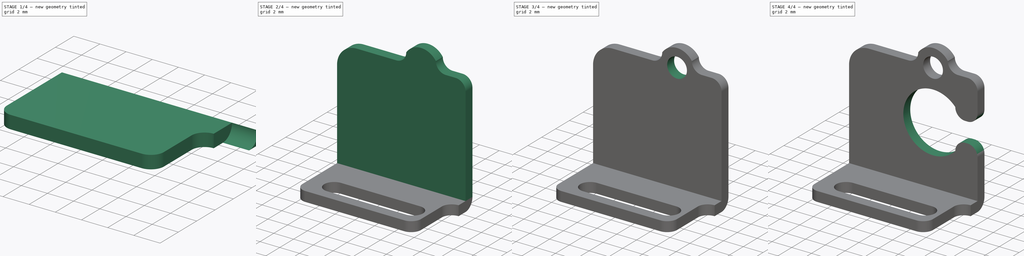
[diagram: build sequence overview — one tinted view per stage of 4, left to right]
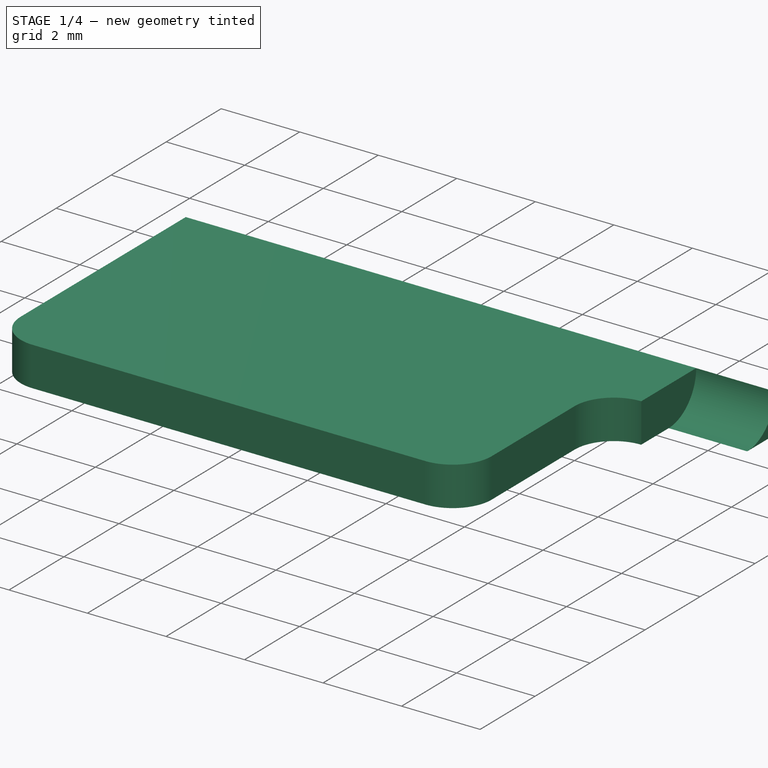
[diagram: stage 1 of 4 — iso view after this stage's code; geometry added in this stage tinted green]
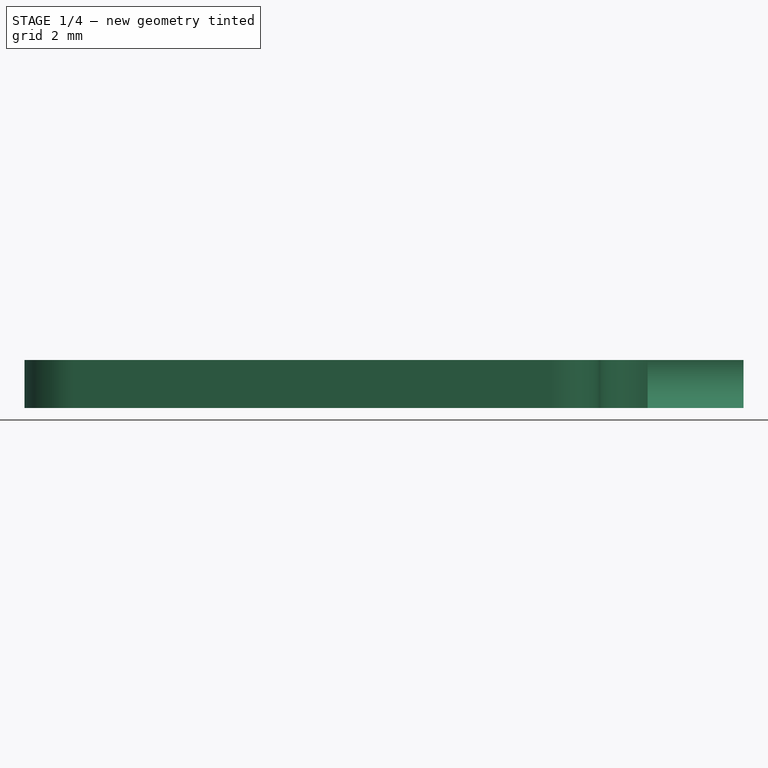
[diagram: stage 1 of 4 — front view after this stage's code; geometry added in this stage tinted green]
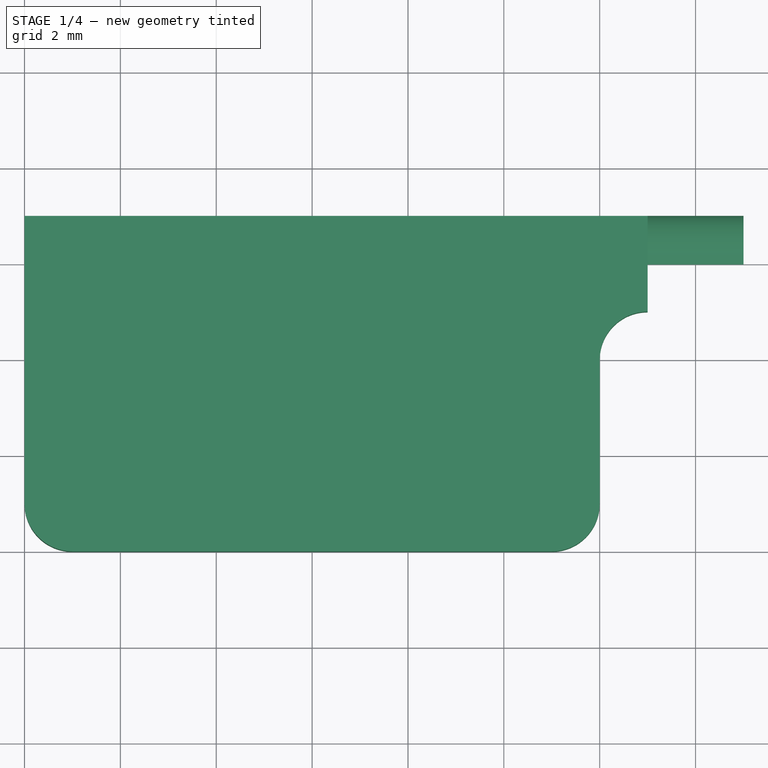
[diagram: stage 1 of 4 — top view after this stage's code; geometry added in this stage tinted green]
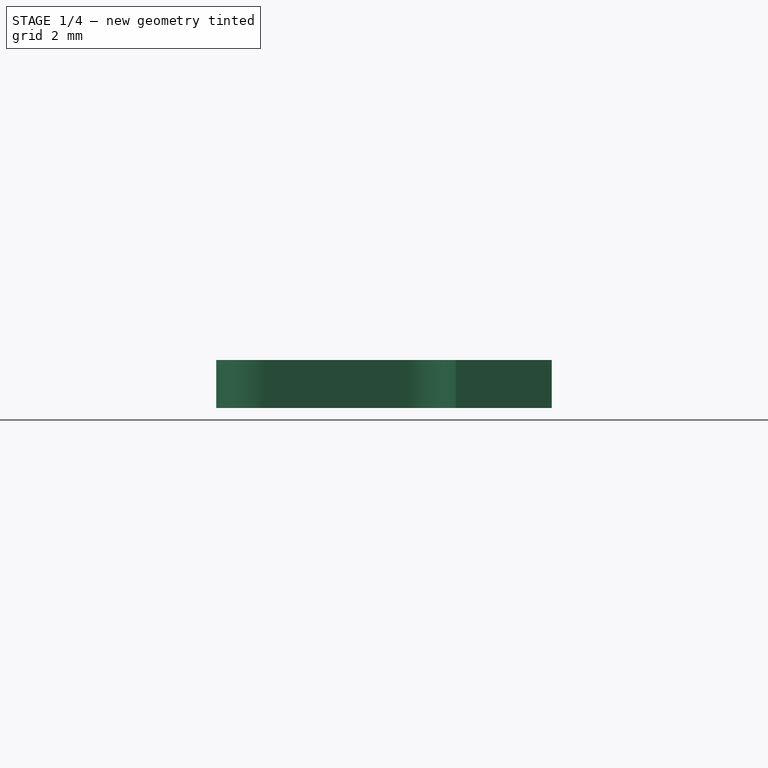
[diagram: stage 1 of 4 — right view after this stage's code; geometry added in this stage tinted green]
FCSTD DOCUMENT  (FreeCAD 0.14R3702 (Git))
Label: scaleauto-f
License: CC-BY 3.0
LicenseURL: http://creativecommons.org/licenses/by/3.0/
objects: Sketcher::SketchObject×6, Part::Extrusion×6, Part::Cut×4, Part::Compound×1
note: 17 computed .brp shape members not serialized (recipe doc carries the construction recipe); baked Part::Feature solids carry a one-line shape summary decoded from their .brp

FEATURE [Sketcher::SketchObject] Sketch
  sketch-geometry (8):
    g0: ArcOfCircle CenterX=1 CenterY=1 CenterZ=0 NormalX=0 NormalY=0 NormalZ=1 Radius=1 StartAngle=3.14159 EndAngle=4.71239
    g1: LineSegment StartX=1 StartY=0 StartZ=0 EndX=11 EndY=0 EndZ=0
    g2: ArcOfCircle CenterX=11 CenterY=1 CenterZ=0 NormalX=0 NormalY=0 NormalZ=1 Radius=1 StartAngle=4.71239 EndAngle=6.28319
    g3: LineSegment StartX=0 StartY=1 StartZ=0 EndX=0 EndY=7 EndZ=0
    g4: LineSegment StartX=0 StartY=7 StartZ=0 EndX=13 EndY=7 EndZ=0
    g5: LineSegment StartX=13 StartY=7 StartZ=0 EndX=13 EndY=5 EndZ=0
    g6: ArcOfCircle CenterX=13 CenterY=4 CenterZ=0 NormalX=0 NormalY=0 NormalZ=1 Radius=1 StartAngle=1.5708 EndAngle=3.14159
    g7: LineSegment StartX=12 StartY=4 StartZ=0 EndX=12 EndY=1 EndZ=0
  constraints (14):
    c: PointOnObject(g0,g-2)
    c: Coincident(g1,g0)
    c: Horizontal(g1)
    c: Coincident(g3,g0)
    c: Vertical(g3)
    c: Coincident(g4,g3)
    c: Horizontal(g4)
    c: Coincident(g5,g4)
    c: Vertical(g5)
    c: Coincident(g7,g6)
    c: Vertical(g7)
    c: Coincident(g1,g2)
    c: Coincident(g2,g7)
    c: Coincident(g5,g6)
FEATURE [Sketcher::SketchObject] Sketch001
  sketch-geometry (4):
    g0: ArcOfCircle CenterX=10.5 CenterY=2 CenterZ=0 NormalX=0 NormalY=0 NormalZ=1 Radius=1 StartAngle=4.71239 EndAngle=7.85398
    g1: LineSegment StartX=10.5 StartY=3 StartZ=0 EndX=2.5 EndY=3 EndZ=0
    g2: ArcOfCircle CenterX=2.5 CenterY=2 CenterZ=0 NormalX=0 NormalY=0 NormalZ=1 Radius=1 StartAngle=1.5708 EndAngle=4.71239
    g3: LineSegment StartX=2.5 StartY=1 StartZ=0 EndX=10.5 EndY=1 EndZ=0
  constraints (6):
    c: Coincident(g1,g0)
    c: Horizontal(g1)
    c: Coincident(g3,g2)
    c: Coincident(g3,g0)
    c: Horizontal(g3)
    c: Coincident(g1,g2)
FEATURE [Part::Extrusion] Extrude
  Base = -> Sketch
  Dir = (0,0,1)
  Solid = true
FEATURE [Part::Extrusion] Extrude001
  Base = -> Sketch001
  Dir = (0,0,1)
  Solid = true
FEATURE [Sketcher::SketchObject] Sketch005
  Placement = pos=(0,0,0) rot=(0.57735,0.57735,0.57735;2.0944rad)
  sketch-geometry (3):
    g0: ArcOfCircle CenterX=6 CenterY=1 CenterZ=0 NormalX=0 NormalY=0 NormalZ=1 Radius=1 StartAngle=4.71239 EndAngle=6.28319
    g1: LineSegment StartX=7 StartY=1 StartZ=0 EndX=7 EndY=0 EndZ=0
    g2: LineSegment StartX=6 StartY=0 StartZ=0 EndX=7 EndY=0 EndZ=0
  constraints (6):
    c: Coincident(g1,g0)
    c: PointOnObject(g1,g-1)
    c: Vertical(g1)
    c: Coincident(g2,g0)
    c: Coincident(g2,g1)
    c: Horizontal(g2)
FEATURE [Part::Extrusion] Extrude006
  Base = -> Sketch005
  Dir = (15,0,0)
  Solid = true
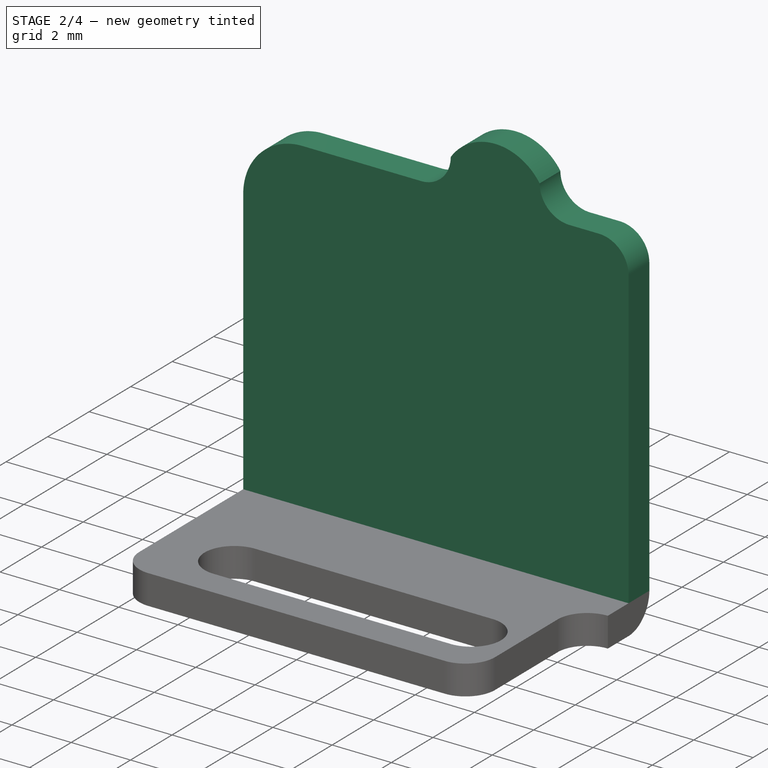
[diagram: stage 2 of 4 — iso view after this stage's code; geometry added in this stage tinted green]
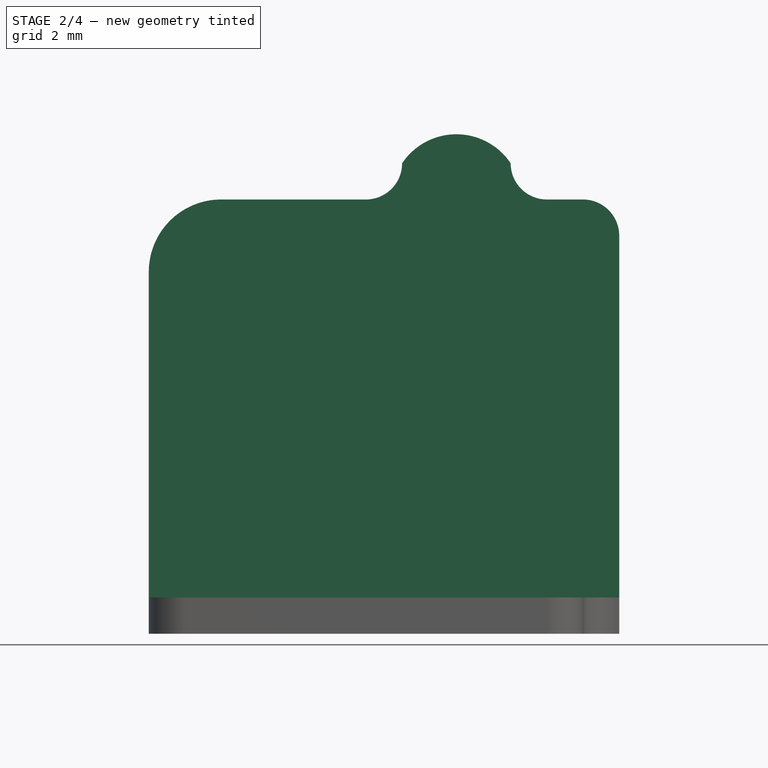
[diagram: stage 2 of 4 — front view after this stage's code; geometry added in this stage tinted green]
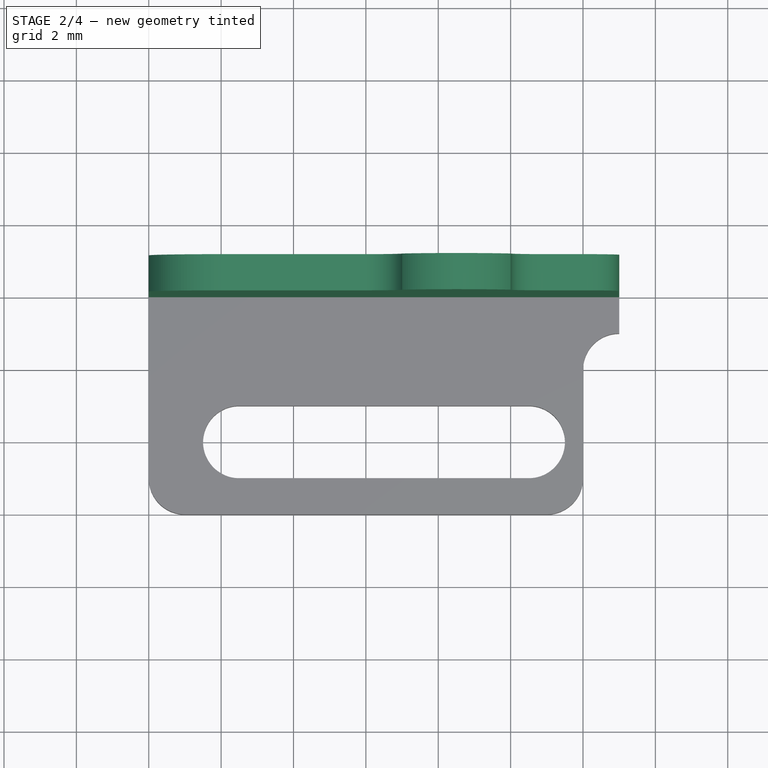
[diagram: stage 2 of 4 — top view after this stage's code; geometry added in this stage tinted green]
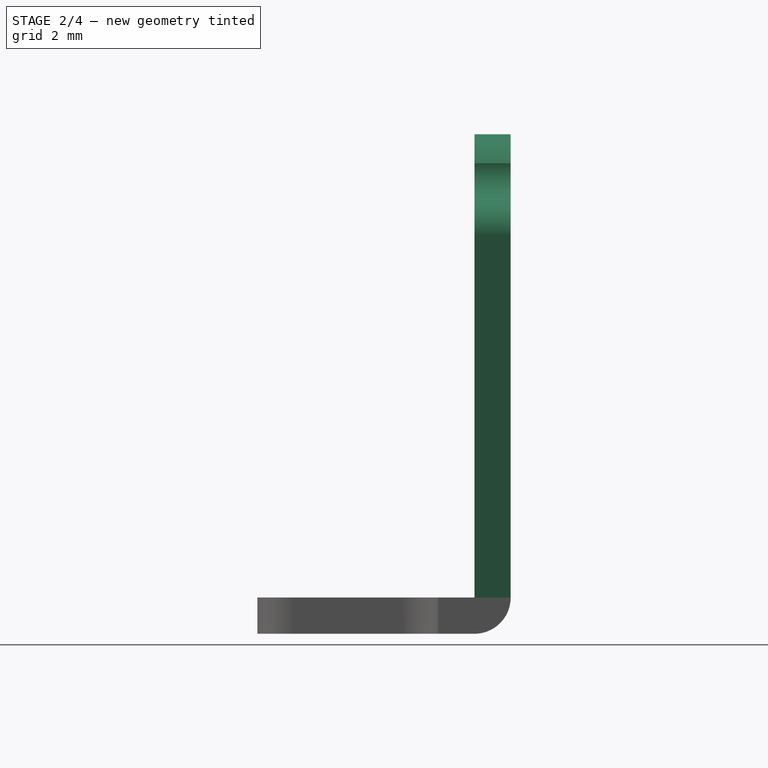
[diagram: stage 2 of 4 — right view after this stage's code; geometry added in this stage tinted green]
FEATURE [Part::Cut] Cut
  Base = -> Extrude
  Tool = -> Extrude001
FEATURE [Part::Extrusion] Extrude005
  Base = -> Sketch002
  Dir = (0,1,0)
  Solid = true
FEATURE [Part::Cut] Cut003
  Base = -> Cut
  Tool = -> Extrude006
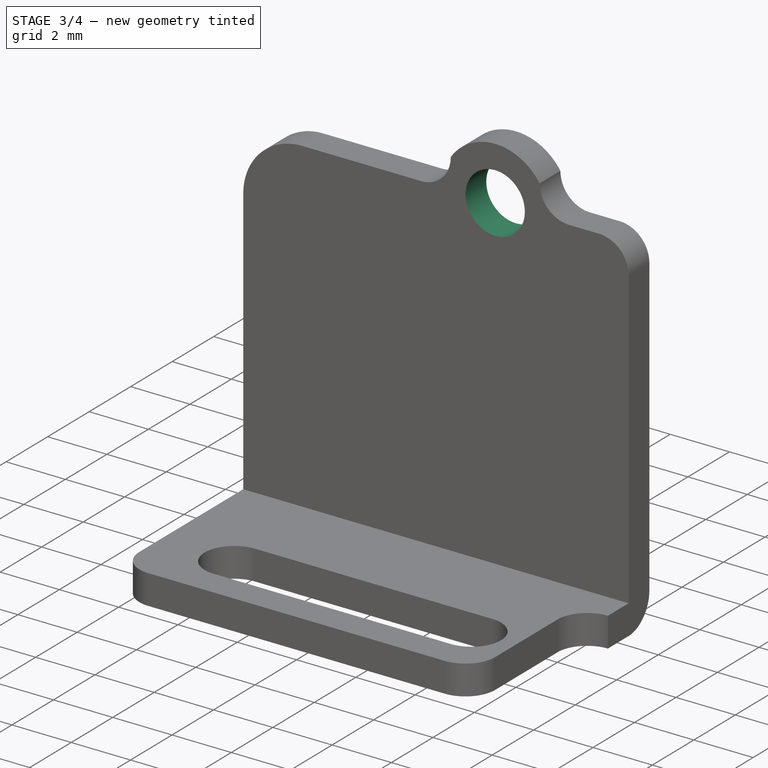
[diagram: stage 3 of 4 — iso view after this stage's code; geometry added in this stage tinted green]
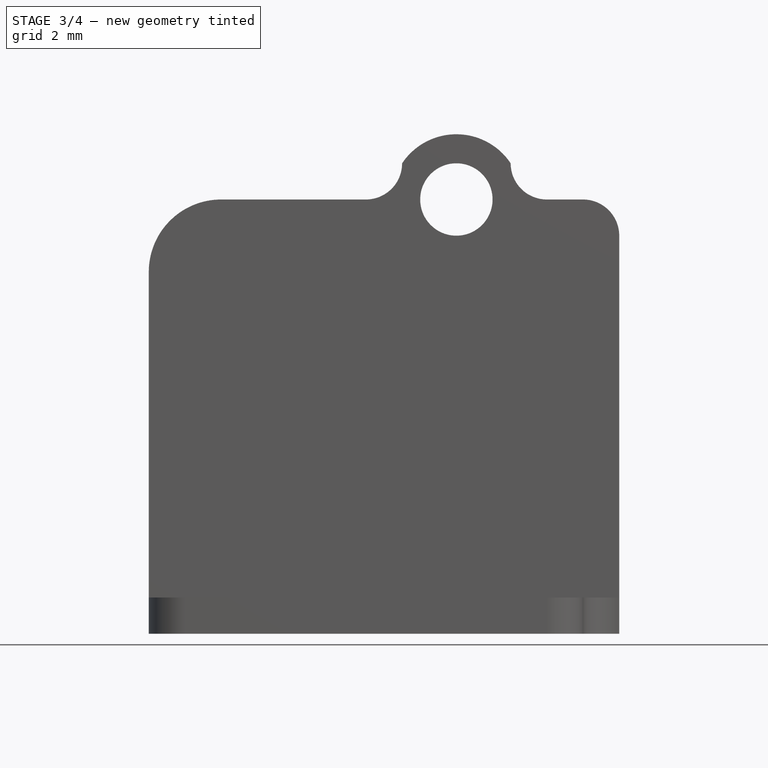
[diagram: stage 3 of 4 — front view after this stage's code; geometry added in this stage tinted green]
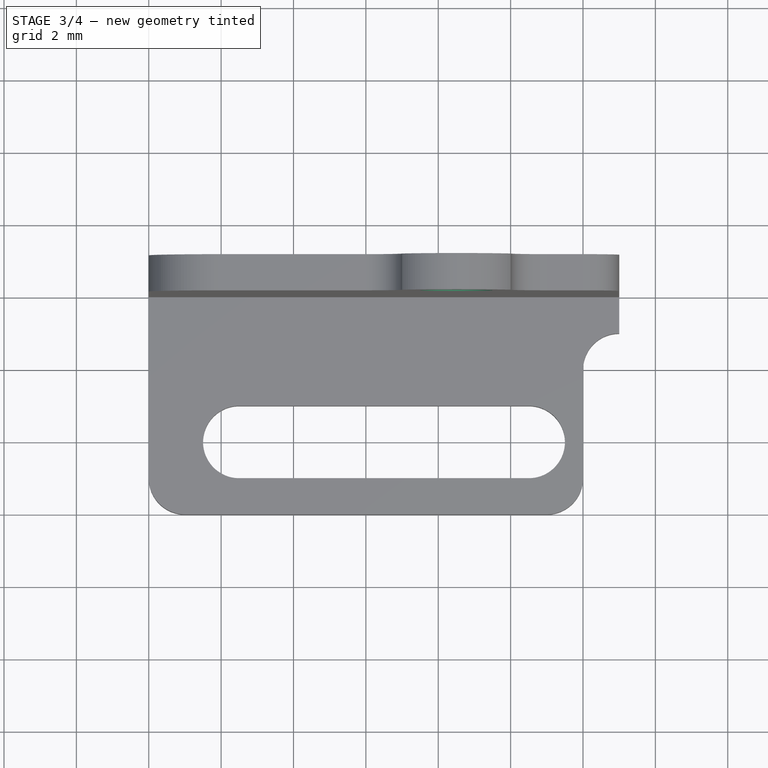
[diagram: stage 3 of 4 — top view after this stage's code; geometry added in this stage tinted green]
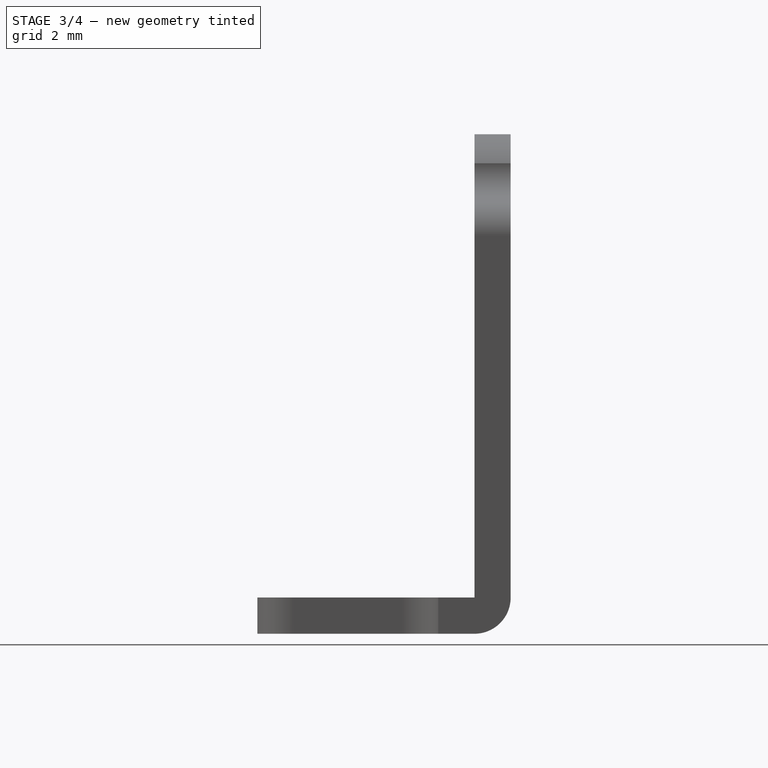
[diagram: stage 3 of 4 — right view after this stage's code; geometry added in this stage tinted green]
FEATURE [Sketcher::SketchObject] Sketch002
  Placement = pos=(0,6,0) rot=(-1,0,0;4.71239rad)
  sketch-geometry (10):
    g0: LineSegment StartX=0 StartY=1 StartZ=0 EndX=0 EndY=10 EndZ=0
    g1: ArcOfCircle CenterX=2 CenterY=10 CenterZ=0 NormalX=0 NormalY=0 NormalZ=1 Radius=2 StartAngle=1.5708 EndAngle=3.14159
    g2: LineSegment StartX=0 StartY=1 StartZ=0 EndX=13 EndY=1 EndZ=0
    g3: LineSegment StartX=13 StartY=1 StartZ=0 EndX=13 EndY=11 EndZ=0
    g4: LineSegment StartX=2 StartY=12 StartZ=0 EndX=6 EndY=12 EndZ=0
    g5: ArcOfCircle CenterX=6 CenterY=13 CenterZ=0 NormalX=0 NormalY=0 NormalZ=1 Radius=1 StartAngle=4.71239 EndAngle=6.28319
    g6: ArcOfCircle CenterX=12 CenterY=11 CenterZ=0 NormalX=0 NormalY=0 NormalZ=1 Radius=1 StartAngle=6.28319 EndAngle=7.85398
    g7: LineSegment StartX=12 StartY=12 StartZ=0 EndX=11 EndY=12 EndZ=0
    g8: ArcOfCircle CenterX=11 CenterY=13 CenterZ=0 NormalX=0 NormalY=0 NormalZ=1 Radius=1 StartAngle=3.14159 EndAngle=4.71239
    g9: ArcOfCircle CenterX=8.5 CenterY=12 CenterZ=0 NormalX=0 NormalY=0 NormalZ=1 Radius=1.80278 StartAngle=0.588003 EndAngle=2.55359
  constraints (17):
    c: PointOnObject(g0,g-2)
    c: PointOnObject(g0,g-2)
    c: Coincident(g2,g0)
    c: Horizontal(g2)
    c: Coincident(g3,g2)
    c: Vertical(g3)
    c: Coincident(g4,g1)
    c: Horizontal(g4)
    c: Coincident(g5,g4)
    c: Coincident(g0,g1)
    c: Coincident(g3,g6)
    c: Coincident(g7,g6)
    c: Horizontal(g7)
    c: Tangent(g7,g6)
    c: Coincident(g8,g7)
    c: Coincident(g9,g8)
    c: Coincident(g5,g9)
FEATURE [Sketcher::SketchObject] Sketch003
  Placement = pos=(0,3,0) rot=(-1,0,0;4.71239rad)
  sketch-geometry (12):
    g0: ArcOfCircle CenterX=8.50012 CenterY=6.99081 CenterZ=0 NormalX=0 NormalY=0 NormalZ=1 Radius=3.00919 StartAngle=1.57083 EndAngle=4.71277
    g1: ArcOfCircle CenterX=8.50115 CenterY=6.97134 CenterZ=0 NormalX=0 NormalY=0 NormalZ=1 Radius=3.02866 StartAngle=0.733967 EndAngle=1.57117
    g2: ArcOfCircle CenterX=11.75 CenterY=9 CenterZ=0 NormalX=0 NormalY=0 NormalZ=1 Radius=1 StartAngle=3.14159 EndAngle=4.71239
    g3: LineSegment StartX=11.75 StartY=8 StartZ=0 EndX=12 EndY=8 EndZ=0
    g4: ArcOfCircle CenterX=12 CenterY=9 CenterZ=0 NormalX=0 NormalY=0 NormalZ=1 Radius=1 StartAngle=4.71239 EndAngle=6.28319
    g5: ArcOfCircle CenterX=11.7533 CenterY=4.99841 CenterZ=0 NormalX=0 NormalY=0 NormalZ=1 Radius=0.999226 StartAngle=1.57245 EndAngle=3.14738
    g6: LineSegment StartX=11.7517 StartY=5.99764 StartZ=0 EndX=12.0002 EndY=5.99764 EndZ=0
    g7: ArcOfCircle CenterX=12.0005 CenterY=4.99878 CenterZ=0 NormalX=0 NormalY=0 NormalZ=1 Radius=0.998856 StartAngle=0.000610314 EndAngle=1.57102
    g8: ArcOfCircle CenterX=8.5 CenterY=7 CenterZ=0 NormalX=0 NormalY=0 NormalZ=1 Radius=3.01837 StartAngle=4.71281 EndAngle=5.55562
    g9: LineSegment StartX=13 StartY=9 StartZ=0 EndX=15.5 EndY=9 EndZ=0
    g10: LineSegment StartX=12.9993 StartY=4.99939 StartZ=0 EndX=15.5 EndY=5 EndZ=0
    g11: LineSegment StartX=15.5 StartY=5 StartZ=0 EndX=15.5 EndY=9 EndZ=0
  constraints (15):
    c: Coincident(g1,g0)
    c: Horizontal(g3)
    c: Coincident(g6,g5)
    c: Horizontal(g6)
    c: Coincident(g7,g6)
    c: Coincident(g8,g0)
    c: Coincident(g8,g5)
    c: Coincident(g9,g4)
    c: Coincident(g10,g7)
    c: Coincident(g11,g9)
    c: Vertical(g11)
    c: Coincident(g1,g2)
    c: Coincident(g2,g3)
    c: Coincident(g4,g3)
    c: Coincident(g10,g11)
FEATURE [Sketcher::SketchObject] Sketch004
  Placement = pos=(0,4,0) rot=(-1,0,0;4.71239rad)
  sketch-geometry (1):
    g0: Circle CenterX=8.5 CenterY=12 CenterZ=0 NormalX=0 NormalY=0 NormalZ=1 Radius=1
FEATURE [Part::Extrusion] Extrude003
  Base = -> Sketch004
  Dir = (0,10,0)
  Placement = pos=(0,-2,0) rot=(0,0,1;0rad)
  Solid = true
FEATURE [Part::Cut] Cut001
  Base = -> Extrude005
  Tool = -> Extrude003
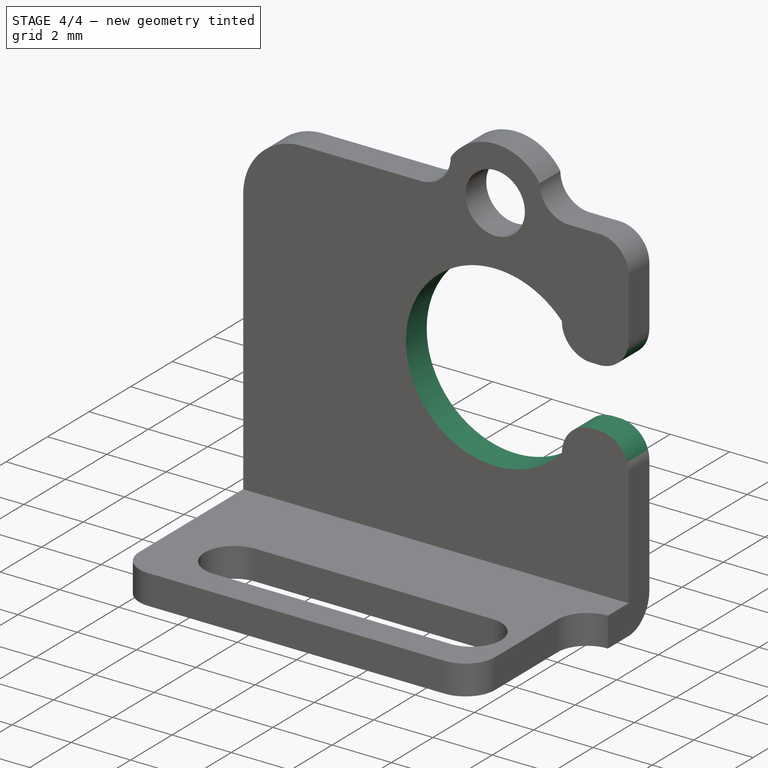
[diagram: stage 4 of 4 — iso view after this stage's code; geometry added in this stage tinted green]
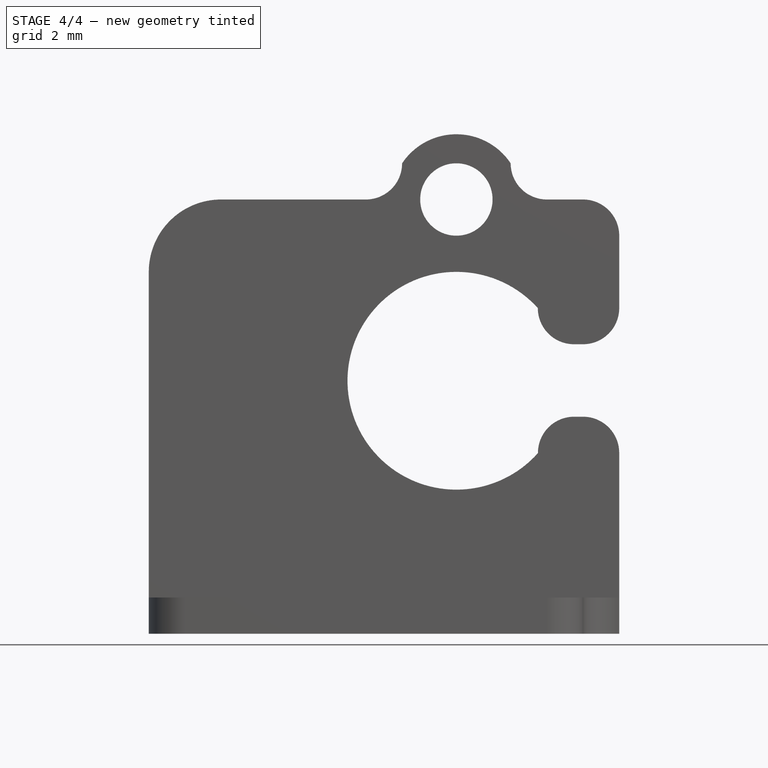
[diagram: stage 4 of 4 — front view after this stage's code; geometry added in this stage tinted green]
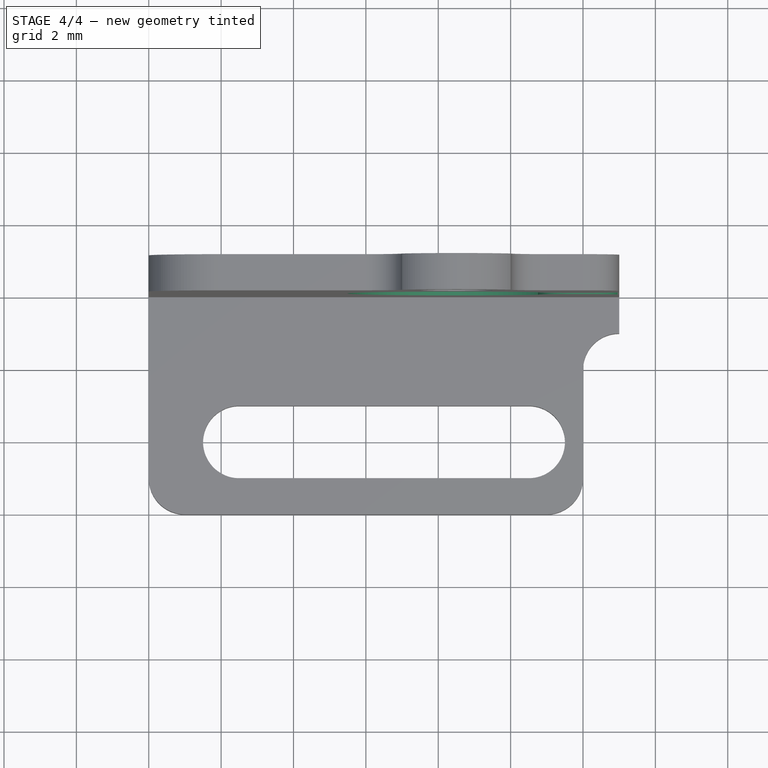
[diagram: stage 4 of 4 — top view after this stage's code; geometry added in this stage tinted green]
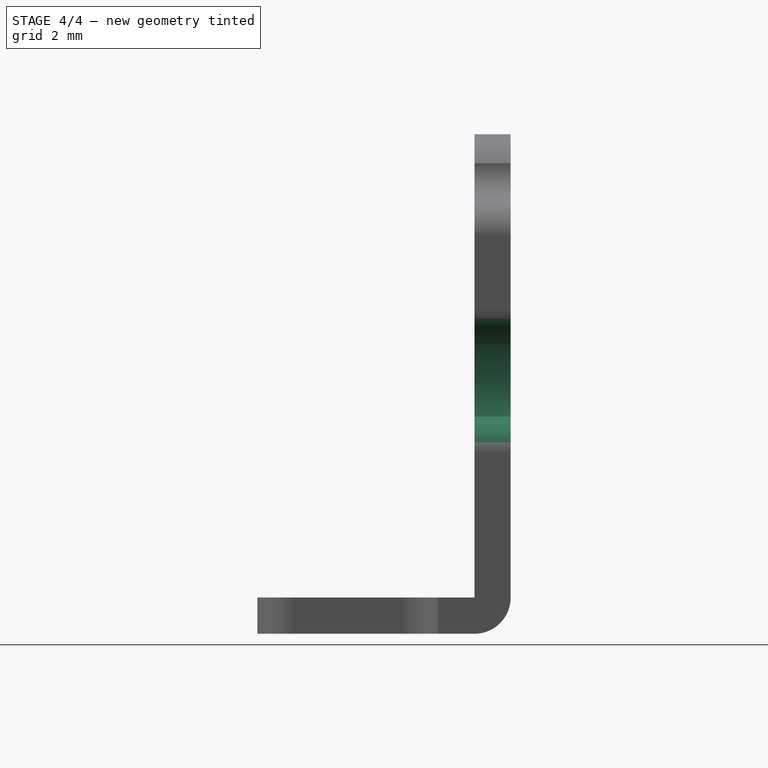
[diagram: stage 4 of 4 — right view after this stage's code; geometry added in this stage tinted green]
FEATURE [Part::Extrusion] Extrude004
  Base = -> Sketch003
  Dir = (0,5,0)
  Solid = true
FEATURE [Part::Cut] Cut002
  Base = -> Cut001
  Tool = -> Extrude004
FEATURE [Part::Compound] Compound  label="SC8000-F"
  Links = -> [Cut002,Cut003]
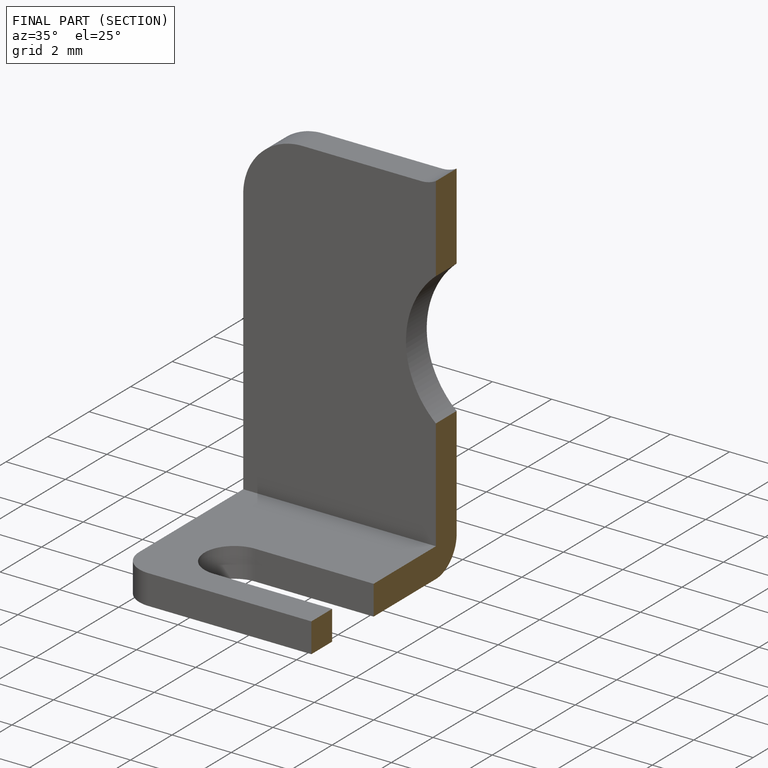
[diagram: finished part — half-section view (interior)]
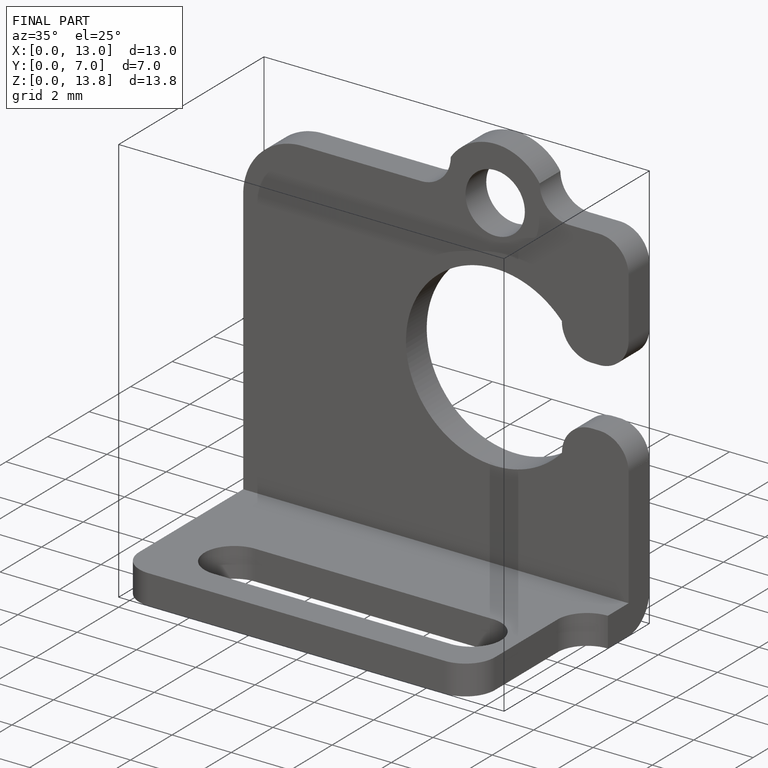
[diagram: finished part — iso view with bounding-box wireframe]
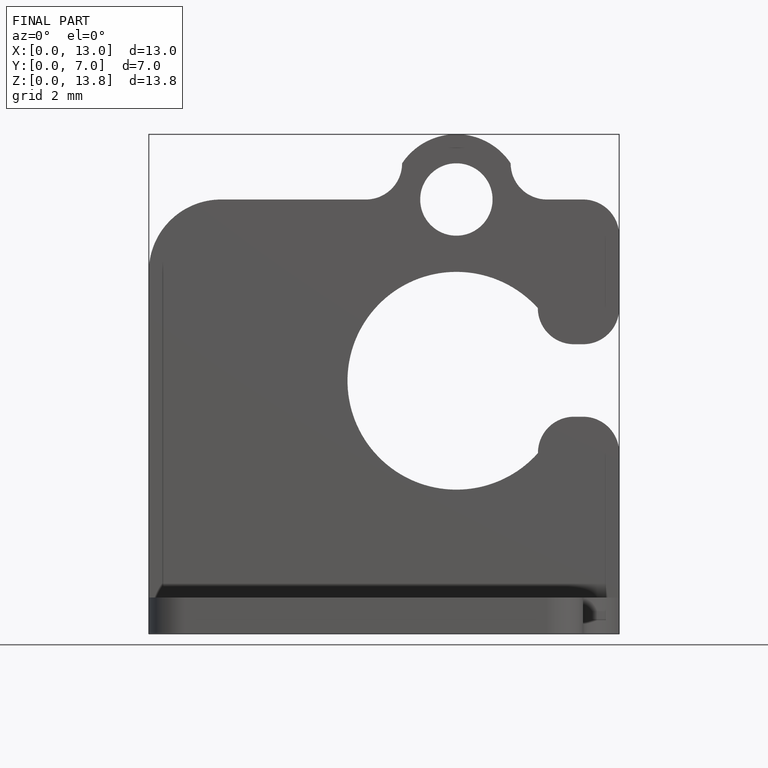
[diagram: finished part — front view with bounding-box wireframe]
